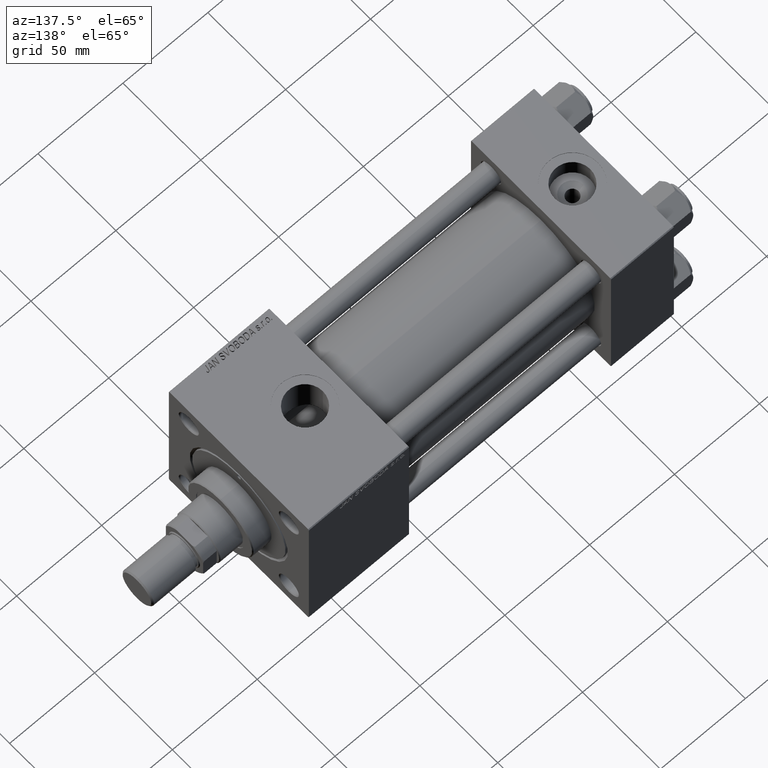
[diagram: clean part render]
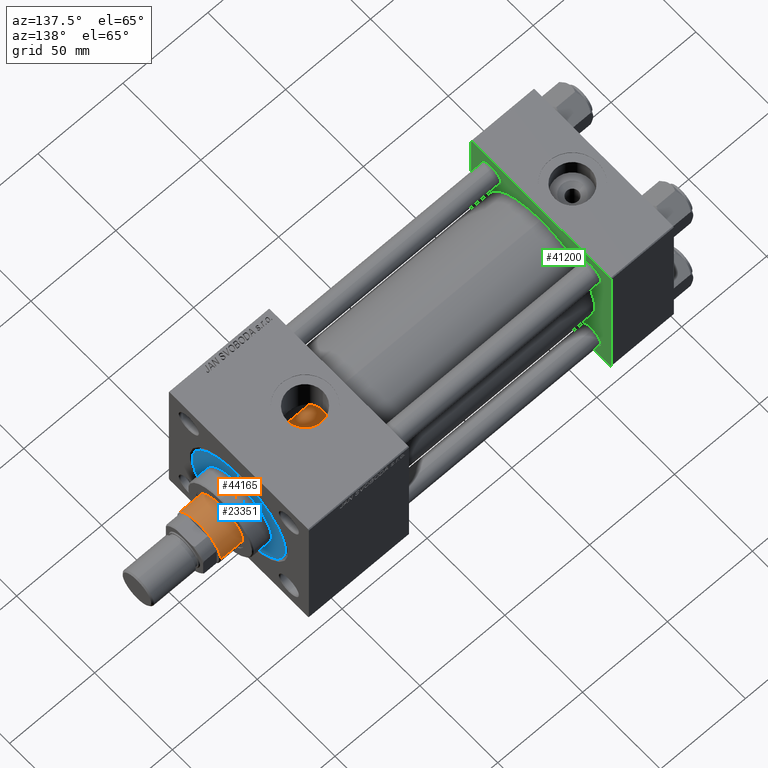
[diagram: same view with three faces highlighted in distinct colors, each labeled with its STEP entity id]
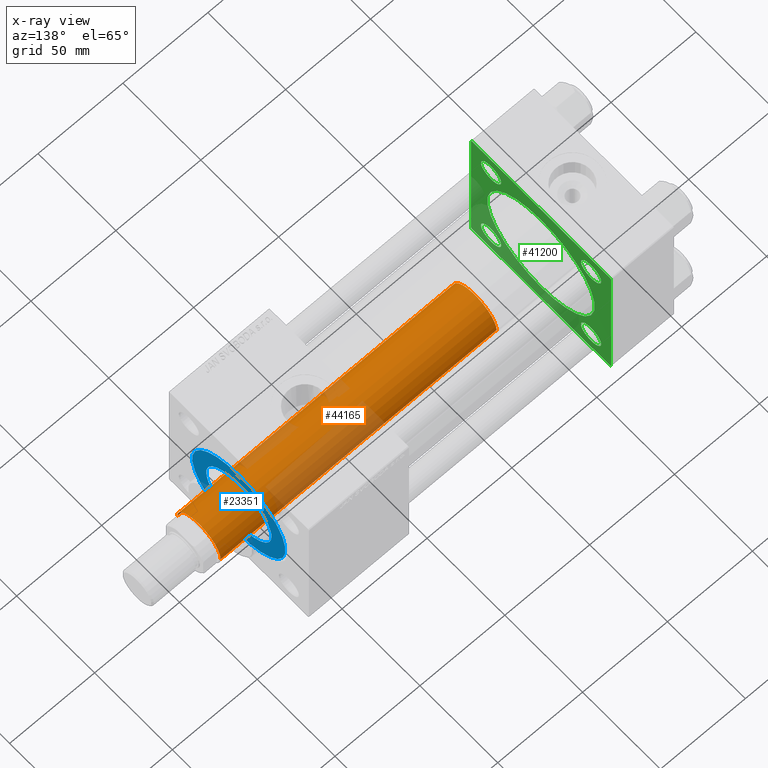
[diagram: x-ray of the same camera — body ghosted, the three highlighted faces saturated]
A machine part, auxiliary view with three faces highlighted in distinct colors.
The next image is the same camera in x-ray (body ghosted, the three faces saturated) — at least one of them is partly hidden behind the body in this view.
Their STEP definitions:

[orange] entity #44165 — the highlighted cylindrical surface (edge-blend (fillet) strip) has radius 14 mm, axis along (-1, 0, 0).
#163 = CYLINDRICAL_SURFACE ( 'NONE', #22537, 14.00000000000000178 ) ;
#1119 = EDGE_CURVE ( 'NONE', #20946, #12477, #38780, .T. ) ;
#8466 = CARTESIAN_POINT ( 'NONE',  ( 14.00000000000000178, 1.714505518806294835E-15, 202.0000000000000000 ) ) ;
#10017 = CARTESIAN_POINT ( 'NONE',  ( -14.00000000000000178, 0.000000000000000000, 201.5000000000000284 ) ) ;
#10477 = CIRCLE ( 'NONE', #17044, 14.00000000000000178 ) ;
#12477 = VERTEX_POINT ( 'NONE', #28711 ) ;
#12548 = CARTESIAN_POINT ( 'NONE',  ( 0.000000000000000000, 0.000000000000000000, 39.00000000000000000 ) ) ;
#13481 = EDGE_LOOP ( 'NONE', ( #43727, #27801, #35861, #40413 ) ) ;
#14003 = DIRECTION ( 'NONE',  ( 0.000000000000000000, 0.000000000000000000, -1.000000000000000000 ) ) ;
#14469 = VECTOR ( 'NONE', #20086, 1000.000000000000000 ) ;
#15731 = CARTESIAN_POINT ( 'NONE',  ( -14.00000000000000178, 0.000000000000000000, 202.0000000000000000 ) ) ;
#16648 = DIRECTION ( 'NONE',  ( 1.000000000000000000, 0.000000000000000000, 0.000000000000000000 ) ) ;
#17044 = AXIS2_PLACEMENT_3D ( 'NONE', #44575, #14003, #29671 ) ;
#18700 = DIRECTION ( 'NONE',  ( -1.000000000000000000, 0.000000000000000000, 0.000000000000000000 ) ) ;
#20086 = DIRECTION ( 'NONE',  ( -0.000000000000000000, -0.000000000000000000, -1.000000000000000000 ) ) ;
#20590 = AXIS2_PLACEMENT_3D ( 'NONE', #12548, #48751, #16648 ) ;
#20946 = VERTEX_POINT ( 'NONE', #38621 ) ;
#22537 = AXIS2_PLACEMENT_3D ( 'NONE', #35117, #23556, #18700 ) ;
#23556 = DIRECTION ( 'NONE',  ( -0.000000000000000000, -0.000000000000000000, -1.000000000000000000 ) ) ;
#24181 = EDGE_CURVE ( 'NONE', #20946, #34136, #10477, .T. ) ;
#25655 = VERTEX_POINT ( 'NONE', #34412 ) ;
#27168 = FACE_OUTER_BOUND ( 'NONE', #13481, .T. ) ;
#27801 = ORIENTED_EDGE ( 'NONE', *, *, #24181, .T. ) ;
#28711 = CARTESIAN_POINT ( 'NONE',  ( 14.00000000000000178, 1.714505518806294835E-15, 39.00000000000000000 ) ) ;
#29671 = DIRECTION ( 'NONE',  ( 1.000000000000000000, 0.000000000000000000, 0.000000000000000000 ) ) ;
#34136 = VERTEX_POINT ( 'NONE', #10017 ) ;
#34412 = CARTESIAN_POINT ( 'NONE',  ( -14.00000000000000178, 0.000000000000000000, 39.00000000000000000 ) ) ;
#34431 = EDGE_CURVE ( 'NONE', #25655, #12477, #49304, .T. ) ;
#35117 = CARTESIAN_POINT ( 'NONE',  ( 0.000000000000000000, 0.000000000000000000, 202.0000000000000000 ) ) ;
#35180 = DIRECTION ( 'NONE',  ( -0.000000000000000000, -0.000000000000000000, -1.000000000000000000 ) ) ;
#35861 = ORIENTED_EDGE ( 'NONE', *, *, #49599, .T. ) ;
#35996 = LINE ( 'NONE', #15731, #14469 ) ;
#38467 = VECTOR ( 'NONE', #35180, 1000.000000000000000 ) ;
#38621 = CARTESIAN_POINT ( 'NONE',  ( 14.00000000000000178, 1.714505518806294835E-15, 201.5000000000000284 ) ) ;
#38780 = LINE ( 'NONE', #8466, #38467 ) ;
#40413 = ORIENTED_EDGE ( 'NONE', *, *, #34431, .T. ) ;
#43727 = ORIENTED_EDGE ( 'NONE', *, *, #1119, .F. ) ;
#44165 = ADVANCED_FACE ( 'NONE', ( #27168 ), #163, .T. ) ;
#44575 = CARTESIAN_POINT ( 'NONE',  ( 0.000000000000000000, 0.000000000000000000, 201.5000000000000284 ) ) ;
#48751 = DIRECTION ( 'NONE',  ( 0.000000000000000000, 0.000000000000000000, 1.000000000000000000 ) ) ;
#49304 = CIRCLE ( 'NONE', #20590, 14.00000000000000178 ) ;
#49599 = EDGE_CURVE ( 'NONE', #34136, #25655, #35996, .T. ) ;

[blue] entity #23351 — the highlighted planar face has unit normal (1, 0, 0).
#133 = EDGE_CURVE ( 'NONE', #35015, #8464, #3952, .T. ) ;
#387 = DIRECTION ( 'NONE',  ( 0.000000000000000000, 0.000000000000000000, 1.000000000000000000 ) ) ;
#3514 = CARTESIAN_POINT ( 'NONE',  ( 21.00000000000000000, 2.571758278209441661E-15, 28.69999999999999929 ) ) ;
#3952 = CIRCLE ( 'NONE', #20405, 30.00000000000000000 ) ;
#4246 = CARTESIAN_POINT ( 'NONE',  ( 0.000000000000000000, 0.000000000000000000, 28.69999999999999929 ) ) ;
#5390 = DIRECTION ( 'NONE',  ( 1.000000000000000000, 0.000000000000000000, 0.000000000000000000 ) ) ;
#5695 = AXIS2_PLACEMENT_3D ( 'NONE', #4246, #387, #16090 ) ;
#6718 = CIRCLE ( 'NONE', #28870, 1.249999999999997558 ) ;
#7214 = CARTESIAN_POINT ( 'NONE',  ( 0.000000000000000000, 0.000000000000000000, 28.69999999999999929 ) ) ;
#7458 = FACE_BOUND ( 'NONE', #35094, .T. ) ;
#7657 = CARTESIAN_POINT ( 'NONE',  ( -27.00000000000000355, 0.000000000000000000, 28.69999999999999929 ) ) ;
#8464 = VERTEX_POINT ( 'NONE', #31109 ) ;
#9367 = ORIENTED_EDGE ( 'NONE', *, *, #33038, .F. ) ;
#9867 = ORIENTED_EDGE ( 'NONE', *, *, #28453, .T. ) ;
#10407 = AXIS2_PLACEMENT_3D ( 'NONE', #19186, #27900, #35854 ) ;
#10700 = CARTESIAN_POINT ( 'NONE',  ( -28.25000000000000000, 0.000000000000000000, 28.69999999999999929 ) ) ;
#11277 = DIRECTION ( 'NONE',  ( 0.000000000000000000, 0.000000000000000000, 1.000000000000000000 ) ) ;
#11344 = CARTESIAN_POINT ( 'NONE',  ( 0.000000000000000000, 0.000000000000000000, 28.69999999999999929 ) ) ;
#11929 = DIRECTION ( 'NONE',  ( 1.000000000000000000, 0.000000000000000000, 0.000000000000000000 ) ) ;
#12129 = DIRECTION ( 'NONE',  ( 0.000000000000000000, 0.000000000000000000, 1.000000000000000000 ) ) ;
#13300 = VERTEX_POINT ( 'NONE', #7657 ) ;
#14223 = EDGE_CURVE ( 'NONE', #49224, #22712, #27367, .T. ) ;
#14523 = CARTESIAN_POINT ( 'NONE',  ( -21.00000000000000000, 0.000000000000000000, 28.69999999999999929 ) ) ;
#14967 = DIRECTION ( 'NONE',  ( 0.000000000000000000, 0.000000000000000000, 1.000000000000000000 ) ) ;
#14980 = DIRECTION ( 'NONE',  ( 1.000000000000000000, 0.000000000000000000, 0.000000000000000000 ) ) ;
#15153 = DIRECTION ( 'NONE',  ( 1.000000000000000000, 0.000000000000000000, 0.000000000000000000 ) ) ;
#15293 = ORIENTED_EDGE ( 'NONE', *, *, #37725, .F. ) ;
#16090 = DIRECTION ( 'NONE',  ( 1.000000000000000000, 0.000000000000000000, 0.000000000000000000 ) ) ;
#16700 = AXIS2_PLACEMENT_3D ( 'NONE', #11344, #14967, #27021 ) ;
#18690 = EDGE_LOOP ( 'NONE', ( #41972, #9867 ) ) ;
#19186 = CARTESIAN_POINT ( 'NONE',  ( 28.25000000000000000, 0.000000000000000000, 28.69999999999999929 ) ) ;
#19289 = FACE_BOUND ( 'NONE', #38131, .T. ) ;
#20405 = AXIS2_PLACEMENT_3D ( 'NONE', #48049, #40566, #5390 ) ;
#20481 = CIRCLE ( 'NONE', #5695, 30.00000000000000000 ) ;
#22024 = EDGE_CURVE ( 'NONE', #42635, #49274, #32549, .T. ) ;
#22712 = VERTEX_POINT ( 'NONE', #3514 ) ;
#23020 = DIRECTION ( 'NONE',  ( 0.000000000000000000, 0.000000000000000000, 1.000000000000000000 ) ) ;
#23229 = CARTESIAN_POINT ( 'NONE',  ( 28.25000000000000000, 0.000000000000000000, 28.69999999999999929 ) ) ;
#23351 = ADVANCED_FACE ( 'NONE', ( #7458, #27751, #19289, #26752 ), #31353, .T. ) ;
#24019 = ORIENTED_EDGE ( 'NONE', *, *, #14223, .F. ) ;
#26295 = ORIENTED_EDGE ( 'NONE', *, *, #43706, .F. ) ;
#26752 = FACE_OUTER_BOUND ( 'NONE', #18690, .T. ) ;
#26897 = EDGE_CURVE ( 'NONE', #13300, #41640, #37676, .T. ) ;
#27021 = DIRECTION ( 'NONE',  ( 1.000000000000000000, 0.000000000000000000, 0.000000000000000000 ) ) ;
#27367 = CIRCLE ( 'NONE', #16700, 21.00000000000000000 ) ;
#27751 = FACE_BOUND ( 'NONE', #35392, .T. ) ;
#27900 = DIRECTION ( 'NONE',  ( 0.000000000000000000, 0.000000000000000000, 1.000000000000000000 ) ) ;
#28453 = EDGE_CURVE ( 'NONE', #8464, #35015, #20481, .T. ) ;
#28870 = AXIS2_PLACEMENT_3D ( 'NONE', #23229, #46869, #11929 ) ;
#29461 = AXIS2_PLACEMENT_3D ( 'NONE', #10700, #23020, #34576 ) ;
#29881 = CARTESIAN_POINT ( 'NONE',  ( 27.00000000000000355, 1.530808498934192803E-16, 28.69999999999999929 ) ) ;
#31052 = CARTESIAN_POINT ( 'NONE',  ( 0.000000000000000000, 0.000000000000000000, 28.69999999999999929 ) ) ;
#31109 = CARTESIAN_POINT ( 'NONE',  ( 30.00000000000000000, 3.673940397442059178E-15, 28.69999999999999929 ) ) ;
#31125 = CARTESIAN_POINT ( 'NONE',  ( -28.25000000000000000, 0.000000000000000000, 28.69999999999999929 ) ) ;
#31353 = PLANE ( 'NONE',  #49053 ) ;
#32549 = CIRCLE ( 'NONE', #10407, 1.249999999999997558 ) ;
#33038 = EDGE_CURVE ( 'NONE', #22712, #49224, #36120, .T. ) ;
#34576 = DIRECTION ( 'NONE',  ( 1.000000000000000000, 0.000000000000000000, 0.000000000000000000 ) ) ;
#35015 = VERTEX_POINT ( 'NONE', #47290 ) ;
#35094 = EDGE_LOOP ( 'NONE', ( #44969, #26295 ) ) ;
#35198 = DIRECTION ( 'NONE',  ( 1.000000000000000000, 0.000000000000000000, -0.000000000000000000 ) ) ;
#35392 = EDGE_LOOP ( 'NONE', ( #15293, #38862 ) ) ;
#35854 = DIRECTION ( 'NONE',  ( 1.000000000000000000, 0.000000000000000000, 0.000000000000000000 ) ) ;
#36120 = CIRCLE ( 'NONE', #45969, 21.00000000000000000 ) ;
#37255 = CIRCLE ( 'NONE', #49607, 1.249999999999997558 ) ;
#37676 = CIRCLE ( 'NONE', #29461, 1.249999999999997558 ) ;
#37725 = EDGE_CURVE ( 'NONE', #49274, #42635, #6718, .T. ) ;
#38131 = EDGE_LOOP ( 'NONE', ( #24019, #9367 ) ) ;
#38862 = ORIENTED_EDGE ( 'NONE', *, *, #22024, .F. ) ;
#40566 = DIRECTION ( 'NONE',  ( 0.000000000000000000, 0.000000000000000000, 1.000000000000000000 ) ) ;
#41640 = VERTEX_POINT ( 'NONE', #44356 ) ;
#41972 = ORIENTED_EDGE ( 'NONE', *, *, #133, .T. ) ;
#42635 = VERTEX_POINT ( 'NONE', #29881 ) ;
#43706 = EDGE_CURVE ( 'NONE', #41640, #13300, #37255, .T. ) ;
#44356 = CARTESIAN_POINT ( 'NONE',  ( -29.50000000000000000, 1.530808498934192803E-16, 28.69999999999999929 ) ) ;
#44969 = ORIENTED_EDGE ( 'NONE', *, *, #26897, .F. ) ;
#45969 = AXIS2_PLACEMENT_3D ( 'NONE', #31052, #11277, #15153 ) ;
#46869 = DIRECTION ( 'NONE',  ( 0.000000000000000000, 0.000000000000000000, 1.000000000000000000 ) ) ;
#47040 = DIRECTION ( 'NONE',  ( 0.000000000000000000, 0.000000000000000000, 1.000000000000000000 ) ) ;
#47290 = CARTESIAN_POINT ( 'NONE',  ( -30.00000000000000000, 0.000000000000000000, 28.69999999999999929 ) ) ;
#48049 = CARTESIAN_POINT ( 'NONE',  ( 0.000000000000000000, 0.000000000000000000, 28.69999999999999929 ) ) ;
#49053 = AXIS2_PLACEMENT_3D ( 'NONE', #7214, #47040, #35198 ) ;
#49224 = VERTEX_POINT ( 'NONE', #14523 ) ;
#49274 = VERTEX_POINT ( 'NONE', #49730 ) ;
#49607 = AXIS2_PLACEMENT_3D ( 'NONE', #31125, #12129, #14980 ) ;
#49730 = CARTESIAN_POINT ( 'NONE',  ( 29.50000000000000000, 0.000000000000000000, 28.69999999999999929 ) ) ;

[green] entity #41200 — the highlighted planar face has unit normal (-1, 0, 0).
#88 = DIRECTION ( 'NONE',  ( -1.000000000000000000, 0.000000000000000000, -0.000000000000000000 ) ) ;
#166 = VECTOR ( 'NONE', #29294, 1000.000000000000114 ) ;
#230 = ORIENTED_EDGE ( 'NONE', *, *, #19198, .T. ) ;
#326 = ORIENTED_EDGE ( 'NONE', *, *, #49881, .T. ) ;
#428 = ORIENTED_EDGE ( 'NONE', *, *, #12005, .T. ) ;
#459 = VERTEX_POINT ( 'NONE', #47382 ) ;
#1686 = VECTOR ( 'NONE', #34271, 1000.000000000000114 ) ;
#2134 = FACE_BOUND ( 'NONE', #12736, .T. ) ;
#2238 = EDGE_LOOP ( 'NONE', ( #22568, #8712 ) ) ;
#2492 = DIRECTION ( 'NONE',  ( 1.000000000000000000, -0.000000000000000000, 0.000000000000000000 ) ) ;
#2790 = AXIS2_PLACEMENT_3D ( 'NONE', #31187, #88, #43780 ) ;
#2900 = FACE_BOUND ( 'NONE', #39056, .T. ) ;
#3727 = EDGE_LOOP ( 'NONE', ( #18203, #13327, #9166, #5768, #326, #22642, #428, #34882 ) ) ;
#3840 = CARTESIAN_POINT ( 'NONE',  ( 37.00000000000000000, 44.99999999999998579, 44.50000000000001421 ) ) ;
#4245 = CIRCLE ( 'NONE', #33823, 6.499999999999977796 ) ;
#4320 = CIRCLE ( 'NONE', #44531, 34.50000000000000000 ) ;
#4553 = EDGE_CURVE ( 'NONE', #19905, #17931, #6539, .T. ) ;
#4826 = CARTESIAN_POINT ( 'NONE',  ( 37.00000000000000711, -2.602085213965210642E-15, 0.000000000000000000 ) ) ;
#5158 = DIRECTION ( 'NONE',  ( 0.000000000000000000, 7.709882115452476934E-17, -1.000000000000000000 ) ) ;
#5171 = LINE ( 'NONE', #32655, #5979 ) ;
#5768 = ORIENTED_EDGE ( 'NONE', *, *, #4553, .T. ) ;
#5972 = DIRECTION ( 'NONE',  ( -0.000000000000000000, 0.7071067811865474617, 0.7071067811865474617 ) ) ;
#5979 = VECTOR ( 'NONE', #13138, 1000.000000000000000 ) ;
#6145 = VERTEX_POINT ( 'NONE', #44208 ) ;
#6349 = VERTEX_POINT ( 'NONE', #7671 ) ;
#6539 = LINE ( 'NONE', #26314, #1686 ) ;
#6627 = CARTESIAN_POINT ( 'NONE',  ( 37.00000000000000711, -2.602085213965210642E-15, 0.000000000000000000 ) ) ;
#6757 = CARTESIAN_POINT ( 'NONE',  ( 37.00000000000000000, 0.000000000000000000, 0.000000000000000000 ) ) ;
#6786 = VERTEX_POINT ( 'NONE', #11442 ) ;
#7671 = CARTESIAN_POINT ( 'NONE',  ( 37.00000000000000000, -44.49999999999995737, -45.00000000000000000 ) ) ;
#8086 = EDGE_CURVE ( 'NONE', #40878, #36140, #49307, .T. ) ;
#8397 = DIRECTION ( 'NONE',  ( 0.000000000000000000, -1.000000000000000000, -1.541976423090495633E-16 ) ) ;
#8577 = CIRCLE ( 'NONE', #47984, 6.500000000000005329 ) ;
#8712 = ORIENTED_EDGE ( 'NONE', *, *, #30826, .F. ) ;
#9166 = ORIENTED_EDGE ( 'NONE', *, *, #18015, .F. ) ;
#10589 = VERTEX_POINT ( 'NONE', #42071 ) ;
#10744 = LINE ( 'NONE', #42077, #46341 ) ;
#11241 = CARTESIAN_POINT ( 'NONE',  ( 37.00000000000000000, 44.49999999999998579, 45.00000000000001421 ) ) ;
#11442 = CARTESIAN_POINT ( 'NONE',  ( 37.00000000000000711, 1.622946243093158675E-15, -34.50000000000000000 ) ) ;
#11521 = EDGE_CURVE ( 'NONE', #27568, #6145, #4245, .T. ) ;
#12005 = EDGE_CURVE ( 'NONE', #14834, #459, #41355, .T. ) ;
#12143 = VERTEX_POINT ( 'NONE', #15695 ) ;
#12257 = LINE ( 'NONE', #27924, #25826 ) ;
#12623 = ORIENTED_EDGE ( 'NONE', *, *, #12921, .T. ) ;
#12706 = VECTOR ( 'NONE', #40772, 1000.000000000000114 ) ;
#12736 = EDGE_LOOP ( 'NONE', ( #46619, #41942 ) ) ;
#12803 = VERTEX_POINT ( 'NONE', #25045 ) ;
#12921 = EDGE_CURVE ( 'NONE', #29071, #29630, #31394, .T. ) ;
#13138 = DIRECTION ( 'NONE',  ( 0.000000000000000000, -1.000000000000000000, -1.541976423090495387E-16 ) ) ;
#13182 = AXIS2_PLACEMENT_3D ( 'NONE', #27325, #26579, #42473 ) ;
#13248 = CARTESIAN_POINT ( 'NONE',  ( 37.00000000000000000, 32.14999999999999147, 25.65000000000002700 ) ) ;
#13327 = ORIENTED_EDGE ( 'NONE', *, *, #27420, .T. ) ;
#13494 = EDGE_CURVE ( 'NONE', #10589, #6786, #4320, .T. ) ;
#14465 = DIRECTION ( 'NONE',  ( -1.000000000000000000, 0.000000000000000000, -0.000000000000000000 ) ) ;
#14834 = VERTEX_POINT ( 'NONE', #19199 ) ;
#15075 = DIRECTION ( 'NONE',  ( 0.000000000000000000, 0.000000000000000000, 1.000000000000000000 ) ) ;
#15408 = EDGE_CURVE ( 'NONE', #26212, #26148, #17544, .T. ) ;
#15695 = CARTESIAN_POINT ( 'NONE',  ( 37.00000000000000000, -44.49999999999995737, 45.00000000000000000 ) ) ;
#15880 = EDGE_LOOP ( 'NONE', ( #45460, #29774 ) ) ;
#16181 = EDGE_CURVE ( 'NONE', #6145, #27568, #48721, .T. ) ;
#17484 = CARTESIAN_POINT ( 'NONE',  ( 37.00000000000000000, -45.00000000000000711, 45.00000000000000000 ) ) ;
#17544 = CIRCLE ( 'NONE', #2790, 6.500000000000005329 ) ;
#17822 = PLANE ( 'NONE',  #23251 ) ;
#17931 = VERTEX_POINT ( 'NONE', #11241 ) ;
#18015 = EDGE_CURVE ( 'NONE', #19905, #12803, #10744, .T. ) ;
#18159 = EDGE_CURVE ( 'NONE', #30170, #6349, #12257, .T. ) ;
#18203 = ORIENTED_EDGE ( 'NONE', *, *, #18159, .F. ) ;
#18796 = CARTESIAN_POINT ( 'NONE',  ( 37.00000000000000000, 32.14999999999999147, 32.15000000000000568 ) ) ;
#19198 = EDGE_CURVE ( 'NONE', #36140, #40878, #48824, .T. ) ;
#19199 = CARTESIAN_POINT ( 'NONE',  ( 37.00000000000000000, -45.00000000000000711, 44.49999999999997158 ) ) ;
#19299 = DIRECTION ( 'NONE',  ( -1.000000000000000000, 0.000000000000000000, -0.000000000000000000 ) ) ;
#19905 = VERTEX_POINT ( 'NONE', #3840 ) ;
#20893 = LINE ( 'NONE', #28842, #21298 ) ;
#21298 = VECTOR ( 'NONE', #5972, 1000.000000000000114 ) ;
#21559 = AXIS2_PLACEMENT_3D ( 'NONE', #18796, #19299, #37105 ) ;
#21852 = LINE ( 'NONE', #36984, #166 ) ;
#22038 = CARTESIAN_POINT ( 'NONE',  ( 37.00000000000000000, -45.00000000000000711, 44.49999999999997158 ) ) ;
#22306 = DIRECTION ( 'NONE',  ( 1.000000000000000000, -0.000000000000000000, 0.000000000000000000 ) ) ;
#22422 = CARTESIAN_POINT ( 'NONE',  ( 37.00000000000000000, 32.14999999999999147, 38.64999999999998437 ) ) ;
#22469 = AXIS2_PLACEMENT_3D ( 'NONE', #34559, #49490, #26097 ) ;
#22568 = ORIENTED_EDGE ( 'NONE', *, *, #13494, .F. ) ;
#22642 = ORIENTED_EDGE ( 'NONE', *, *, #47972, .T. ) ;
#23251 = AXIS2_PLACEMENT_3D ( 'NONE', #6757, #14465, #38100 ) ;
#23307 = CARTESIAN_POINT ( 'NONE',  ( 37.00000000000000000, 32.14999999999999147, -32.15000000000000568 ) ) ;
#23806 = DIRECTION ( 'NONE',  ( -1.000000000000000000, 0.000000000000000000, -0.000000000000000000 ) ) ;
#24682 = AXIS2_PLACEMENT_3D ( 'NONE', #6627, #22306, #37964 ) ;
#24798 = DIRECTION ( 'NONE',  ( 0.000000000000000000, 0.000000000000000000, 1.000000000000000000 ) ) ;
#25045 = CARTESIAN_POINT ( 'NONE',  ( 37.00000000000000000, 44.99999999999998579, -44.49999999999995737 ) ) ;
#25087 = CARTESIAN_POINT ( 'NONE',  ( 37.00000000000000000, -32.14999999999997726, -32.15000000000001279 ) ) ;
#25826 = VECTOR ( 'NONE', #8397, 1000.000000000000000 ) ;
#26097 = DIRECTION ( 'NONE',  ( 0.000000000000000000, 0.000000000000000000, 1.000000000000000000 ) ) ;
#26148 = VERTEX_POINT ( 'NONE', #48473 ) ;
#26212 = VERTEX_POINT ( 'NONE', #34072 ) ;
#26314 = CARTESIAN_POINT ( 'NONE',  ( 37.00000000000000000, 44.49999999999998579, 45.00000000000001421 ) ) ;
#26579 = DIRECTION ( 'NONE',  ( -1.000000000000000000, 0.000000000000000000, -0.000000000000000000 ) ) ;
#27112 = AXIS2_PLACEMENT_3D ( 'NONE', #30683, #30436, #27591 ) ;
#27325 = CARTESIAN_POINT ( 'NONE',  ( 37.00000000000000000, -32.14999999999997726, -32.15000000000001279 ) ) ;
#27420 = EDGE_CURVE ( 'NONE', #30170, #12803, #20893, .T. ) ;
#27568 = VERTEX_POINT ( 'NONE', #46786 ) ;
#27591 = DIRECTION ( 'NONE',  ( 0.000000000000000000, 0.000000000000000000, 1.000000000000000000 ) ) ;
#27924 = CARTESIAN_POINT ( 'NONE',  ( 37.00000000000000000, 44.99999999999998579, -44.99999999999998579 ) ) ;
#28324 = AXIS2_PLACEMENT_3D ( 'NONE', #25087, #37410, #40746 ) ;
#28842 = CARTESIAN_POINT ( 'NONE',  ( 37.00000000000000000, 44.99999999999998579, -44.49999999999998579 ) ) ;
#29071 = VERTEX_POINT ( 'NONE', #22422 ) ;
#29172 = CARTESIAN_POINT ( 'NONE',  ( 37.00000000000000000, -32.14999999999997726, 32.15000000000001279 ) ) ;
#29294 = DIRECTION ( 'NONE',  ( 0.000000000000000000, 0.7071067811865474617, -0.7071067811865474617 ) ) ;
#29630 = VERTEX_POINT ( 'NONE', #13248 ) ;
#29729 = EDGE_CURVE ( 'NONE', #29630, #29071, #49273, .T. ) ;
#29774 = ORIENTED_EDGE ( 'NONE', *, *, #15408, .T. ) ;
#30170 = VERTEX_POINT ( 'NONE', #34727 ) ;
#30436 = DIRECTION ( 'NONE',  ( -1.000000000000000000, 0.000000000000000000, -0.000000000000000000 ) ) ;
#30683 = CARTESIAN_POINT ( 'NONE',  ( 37.00000000000000000, 32.14999999999999147, 32.15000000000000568 ) ) ;
#30826 = EDGE_CURVE ( 'NONE', #6786, #10589, #32059, .T. ) ;
#31187 = CARTESIAN_POINT ( 'NONE',  ( 37.00000000000000000, -32.14999999999997726, 32.15000000000001279 ) ) ;
#31217 = EDGE_LOOP ( 'NONE', ( #42684, #12623 ) ) ;
#31394 = CIRCLE ( 'NONE', #21559, 6.499999999999977796 ) ;
#32035 = DIRECTION ( 'NONE',  ( 0.000000000000000000, 0.000000000000000000, 1.000000000000000000 ) ) ;
#32059 = CIRCLE ( 'NONE', #24682, 34.50000000000000000 ) ;
#32655 = CARTESIAN_POINT ( 'NONE',  ( 37.00000000000000000, 44.99999999999998579, 45.00000000000001421 ) ) ;
#33823 = AXIS2_PLACEMENT_3D ( 'NONE', #23307, #23806, #32035 ) ;
#33990 = FACE_OUTER_BOUND ( 'NONE', #3727, .T. ) ;
#34072 = CARTESIAN_POINT ( 'NONE',  ( 37.00000000000000000, -32.14999999999997726, 38.65000000000001990 ) ) ;
#34271 = DIRECTION ( 'NONE',  ( 0.000000000000000000, -0.7071067811865474617, 0.7071067811865474617 ) ) ;
#34559 = CARTESIAN_POINT ( 'NONE',  ( 37.00000000000000000, 32.14999999999999147, -32.15000000000000568 ) ) ;
#34727 = CARTESIAN_POINT ( 'NONE',  ( 37.00000000000000000, 44.49999999999998579, -44.99999999999998579 ) ) ;
#34882 = ORIENTED_EDGE ( 'NONE', *, *, #39417, .T. ) ;
#35449 = VECTOR ( 'NONE', #5158, 1000.000000000000000 ) ;
#36140 = VERTEX_POINT ( 'NONE', #42664 ) ;
#36984 = CARTESIAN_POINT ( 'NONE',  ( 37.00000000000000000, -44.49999999999998579, -45.00000000000000000 ) ) ;
#37105 = DIRECTION ( 'NONE',  ( 0.000000000000000000, 0.000000000000000000, 1.000000000000000000 ) ) ;
#37410 = DIRECTION ( 'NONE',  ( -1.000000000000000000, 0.000000000000000000, -0.000000000000000000 ) ) ;
#37964 = DIRECTION ( 'NONE',  ( 0.000000000000000000, 0.000000000000000000, 1.000000000000000000 ) ) ;
#38100 = DIRECTION ( 'NONE',  ( -0.000000000000000000, 0.000000000000000000, 1.000000000000000000 ) ) ;
#39056 = EDGE_LOOP ( 'NONE', ( #230, #45053 ) ) ;
#39417 = EDGE_CURVE ( 'NONE', #459, #6349, #21852, .T. ) ;
#40746 = DIRECTION ( 'NONE',  ( 0.000000000000000000, 0.000000000000000000, 1.000000000000000000 ) ) ;
#40772 = DIRECTION ( 'NONE',  ( -0.000000000000000000, -0.7071067811865425767, -0.7071067811865524577 ) ) ;
#40878 = VERTEX_POINT ( 'NONE', #45882 ) ;
#41200 = ADVANCED_FACE ( 'NONE', ( #2900, #2134, #46074, #45823, #45573, #33990 ), #17822, .F. ) ;
#41355 = LINE ( 'NONE', #17484, #35449 ) ;
#41942 = ORIENTED_EDGE ( 'NONE', *, *, #16181, .T. ) ;
#42071 = CARTESIAN_POINT ( 'NONE',  ( 37.00000000000000711, -2.602085213965210642E-15, 34.50000000000000000 ) ) ;
#42077 = CARTESIAN_POINT ( 'NONE',  ( 37.00000000000000000, 44.99999999999998579, 45.00000000000001421 ) ) ;
#42319 = DIRECTION ( 'NONE',  ( 0.000000000000000000, 0.000000000000000000, -1.000000000000000000 ) ) ;
#42473 = DIRECTION ( 'NONE',  ( 0.000000000000000000, 0.000000000000000000, 1.000000000000000000 ) ) ;
#42664 = CARTESIAN_POINT ( 'NONE',  ( 37.00000000000000000, -32.14999999999997726, -38.65000000000001990 ) ) ;
#42684 = ORIENTED_EDGE ( 'NONE', *, *, #29729, .T. ) ;
#43780 = DIRECTION ( 'NONE',  ( 0.000000000000000000, 0.000000000000000000, 1.000000000000000000 ) ) ;
#44208 = CARTESIAN_POINT ( 'NONE',  ( 37.00000000000000000, 32.14999999999999147, -25.65000000000002700 ) ) ;
#44531 = AXIS2_PLACEMENT_3D ( 'NONE', #4826, #2492, #15075 ) ;
#45053 = ORIENTED_EDGE ( 'NONE', *, *, #8086, .T. ) ;
#45460 = ORIENTED_EDGE ( 'NONE', *, *, #48180, .T. ) ;
#45573 = FACE_BOUND ( 'NONE', #2238, .T. ) ;
#45823 = FACE_BOUND ( 'NONE', #31217, .T. ) ;
#45882 = CARTESIAN_POINT ( 'NONE',  ( 37.00000000000000000, -32.14999999999997726, -25.65000000000000568 ) ) ;
#46074 = FACE_BOUND ( 'NONE', #15880, .T. ) ;
#46341 = VECTOR ( 'NONE', #42319, 1000.000000000000000 ) ;
#46619 = ORIENTED_EDGE ( 'NONE', *, *, #11521, .T. ) ;
#46786 = CARTESIAN_POINT ( 'NONE',  ( 37.00000000000000000, 32.14999999999999147, -38.64999999999998437 ) ) ;
#47382 = CARTESIAN_POINT ( 'NONE',  ( 37.00000000000000000, -45.00000000000000000, -44.49999999999995737 ) ) ;
#47972 = EDGE_CURVE ( 'NONE', #12143, #14834, #49016, .T. ) ;
#47984 = AXIS2_PLACEMENT_3D ( 'NONE', #29172, #48433, #24798 ) ;
#48180 = EDGE_CURVE ( 'NONE', #26148, #26212, #8577, .T. ) ;
#48433 = DIRECTION ( 'NONE',  ( -1.000000000000000000, 0.000000000000000000, -0.000000000000000000 ) ) ;
#48473 = CARTESIAN_POINT ( 'NONE',  ( 37.00000000000000000, -32.14999999999997726, 25.65000000000000568 ) ) ;
#48721 = CIRCLE ( 'NONE', #22469, 6.499999999999977796 ) ;
#48824 = CIRCLE ( 'NONE', #28324, 6.500000000000005329 ) ;
#49016 = LINE ( 'NONE', #22038, #12706 ) ;
#49273 = CIRCLE ( 'NONE', #27112, 6.499999999999977796 ) ;
#49307 = CIRCLE ( 'NONE', #13182, 6.500000000000005329 ) ;
#49490 = DIRECTION ( 'NONE',  ( -1.000000000000000000, 0.000000000000000000, -0.000000000000000000 ) ) ;
#49881 = EDGE_CURVE ( 'NONE', #17931, #12143, #5171, .T. ) ;